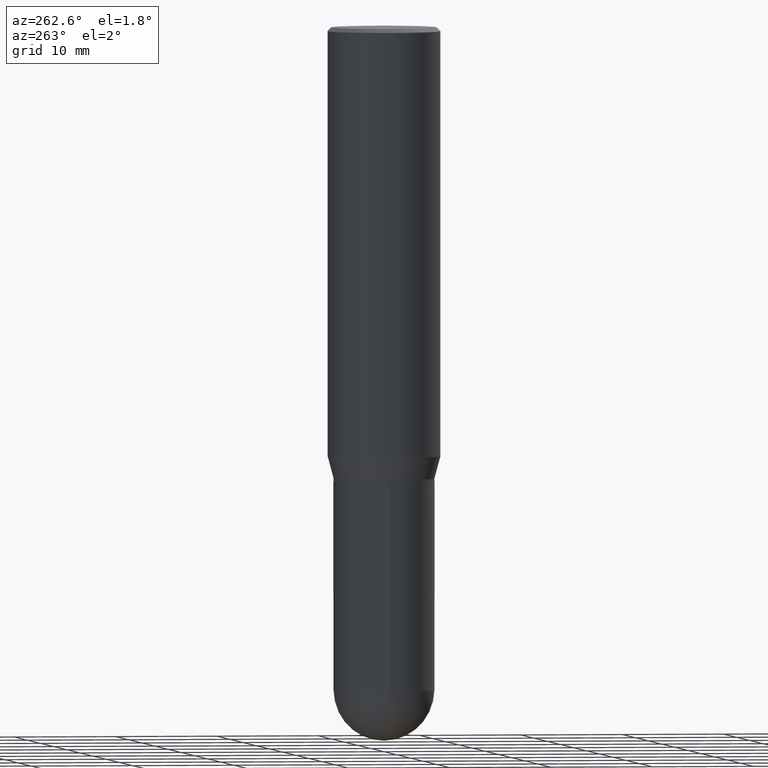
[diagram: clean part render]
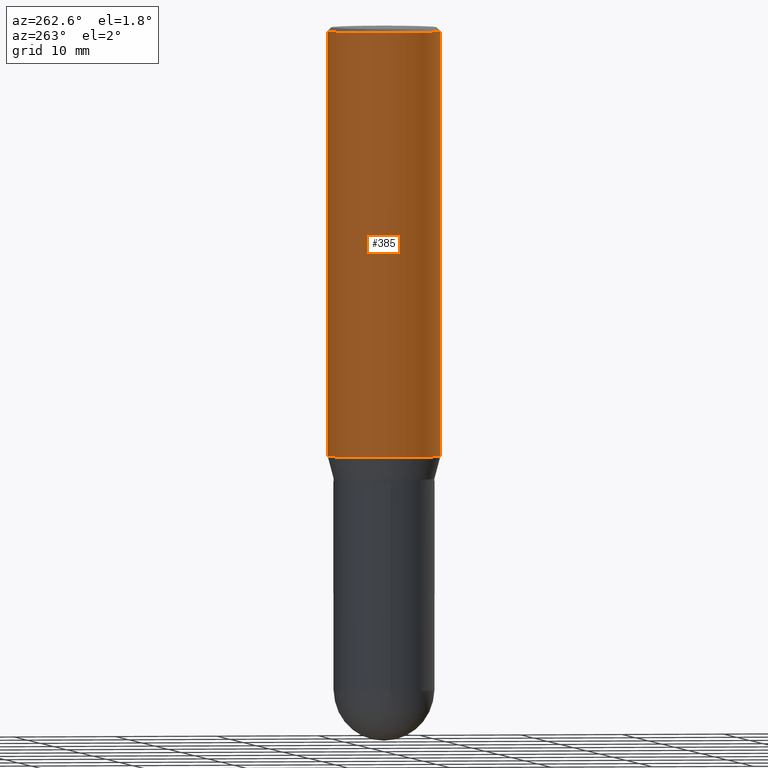
[diagram: same view with one face highlighted and labeled with its STEP entity id]
A machine part, auxiliary view. The second image highlights one B-rep face of the part: STEP entity #385.
In plain terms, the highlighted cylindrical surface (partial cylindrical patch) has radius 5.5562 mm, axis along (-0, 0, 1).
Its self-contained STEP definition (entity closure, byte-faithful):
#5 = EDGE_LOOP ( 'NONE', ( #204, #464, #263, #43 ) ) ;
#7 = AXIS2_PLACEMENT_3D ( 'NONE', #249, #449, #50 ) ;
#10 = EDGE_CURVE ( 'NONE', #393, #125, #422, .T. ) ;
#12 = DIRECTION ( 'NONE',  ( -2.445224538422357859E-29, 3.491831144182302259E-15, 1.000000000000000000 ) ) ;
#25 = DIRECTION ( 'NONE',  ( -2.445224538422357859E-29, 3.491831144182302653E-15, 1.000000000000000000 ) ) ;
#43 = ORIENTED_EDGE ( 'NONE', *, *, #137, .F. ) ;
#50 = DIRECTION ( 'NONE',  ( -6.982962677686265133E-15, -1.000000000000000000, 3.746534391310989557E-15 ) ) ;
#53 = FACE_OUTER_BOUND ( 'NONE', #5, .T. ) ;
#85 = CARTESIAN_POINT ( 'NONE',  ( -1.527523085743830414E-15, -0.2187500000000058009, -1.652483408562509082 ) ) ;
#98 = CARTESIAN_POINT ( 'NONE',  ( -1.527523085743870449E-15, -0.2187500000000000000, 7.638380627898786315E-16 ) ) ;
#125 = VERTEX_POINT ( 'NONE', #166 ) ;
#135 = VECTOR ( 'NONE', #462, 39.37007874015748143 ) ;
#137 = EDGE_CURVE ( 'NONE', #125, #448, #493, .T. ) ;
#149 = VERTEX_POINT ( 'NONE', #85 ) ;
#155 = CARTESIAN_POINT ( 'NONE',  ( -1.527523085743870054E-15, -0.2187500000000000555, -0.01499999999999939403 ) ) ;
#166 = CARTESIAN_POINT ( 'NONE',  ( 1.554312234475259191E-15, 0.2187499999999998890, -0.01500000000000092232 ) ) ;
#179 = AXIS2_PLACEMENT_3D ( 'NONE', #436, #478, #440 ) ;
#204 = ORIENTED_EDGE ( 'NONE', *, *, #10, .F. ) ;
#212 = CYLINDRICAL_SURFACE ( 'NONE', #500, 0.2187500000000000000 ) ;
#232 = LINE ( 'NONE', #98, #135 ) ;
#249 = CARTESIAN_POINT ( 'NONE',  ( 4.040692979952868380E-29, -5.770193031263100651E-15, -1.652483408562509748 ) ) ;
#263 = ORIENTED_EDGE ( 'NONE', *, *, #474, .T. ) ;
#264 = CIRCLE ( 'NONE', #7, 0.2187500000000000000 ) ;
#285 = VECTOR ( 'NONE', #25, 39.37007874015748143 ) ;
#325 = EDGE_CURVE ( 'NONE', #393, #149, #264, .T. ) ;
#327 = CARTESIAN_POINT ( 'NONE',  ( 0.000000000000000000, 0.000000000000000000, 0.000000000000000000 ) ) ;
#367 = CARTESIAN_POINT ( 'NONE',  ( 1.554312234475258797E-15, 0.2187499999999941713, -1.652483408562510636 ) ) ;
#385 = ADVANCED_FACE ( 'NONE', ( #53 ), #212, .T. ) ;
#393 = VERTEX_POINT ( 'NONE', #367 ) ;
#422 = LINE ( 'NONE', #499, #285 ) ;
#436 = CARTESIAN_POINT ( 'NONE',  ( 3.667836807633575149E-31, -5.237746716273508633E-17, -0.01500000000000015730 ) ) ;
#440 = DIRECTION ( 'NONE',  ( -6.982962677686265133E-15, -1.000000000000000000, 3.492862791899308071E-15 ) ) ;
#448 = VERTEX_POINT ( 'NONE', #155 ) ;
#449 = DIRECTION ( 'NONE',  ( -2.445224538422357859E-29, 3.491831144182302259E-15, 1.000000000000000000 ) ) ;
#462 = DIRECTION ( 'NONE',  ( -2.445224538422357859E-29, 3.491831144182302653E-15, 1.000000000000000000 ) ) ;
#464 = ORIENTED_EDGE ( 'NONE', *, *, #325, .T. ) ;
#474 = EDGE_CURVE ( 'NONE', #149, #448, #232, .T. ) ;
#478 = DIRECTION ( 'NONE',  ( -2.445224538422357859E-29, 3.491831144182302259E-15, 1.000000000000000000 ) ) ;
#485 = DIRECTION ( 'NONE',  ( -6.982962677686265133E-15, -1.000000000000000000, 3.491831144182302259E-15 ) ) ;
#493 = CIRCLE ( 'NONE', #179, 0.2187500000000000000 ) ;
#499 = CARTESIAN_POINT ( 'NONE',  ( 1.554312234475218762E-15, 0.2187500000000000000, -7.638380627898786315E-16 ) ) ;
#500 = AXIS2_PLACEMENT_3D ( 'NONE', #327, #12, #485 ) ;